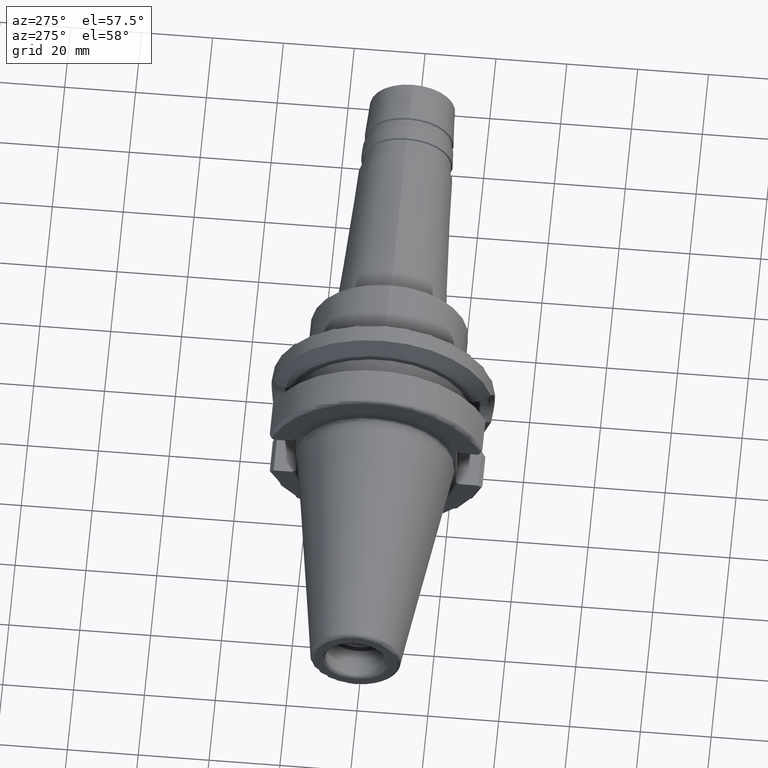
[diagram: clean part render]
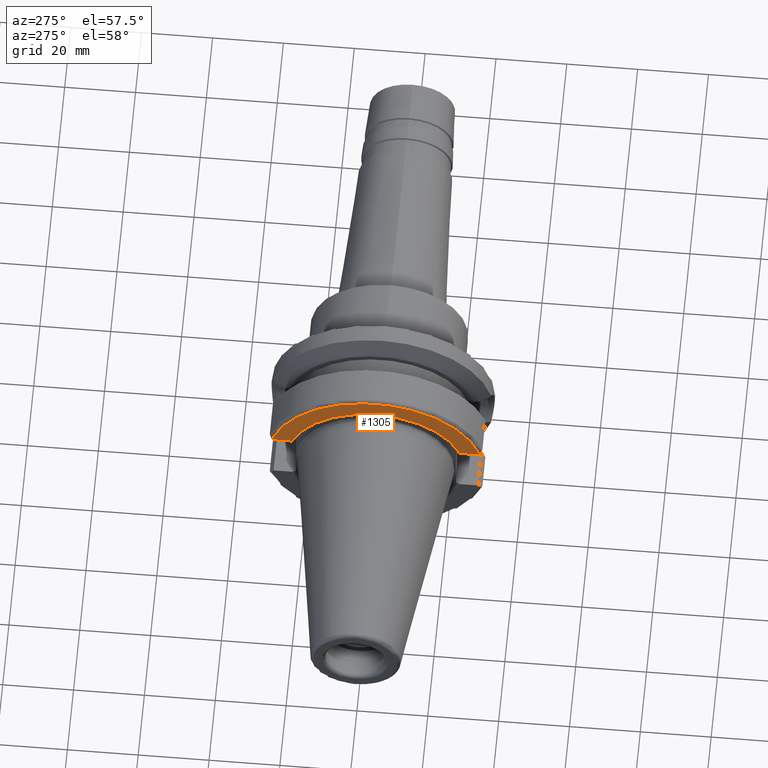
[diagram: same view with one face highlighted and labeled with its STEP entity id]
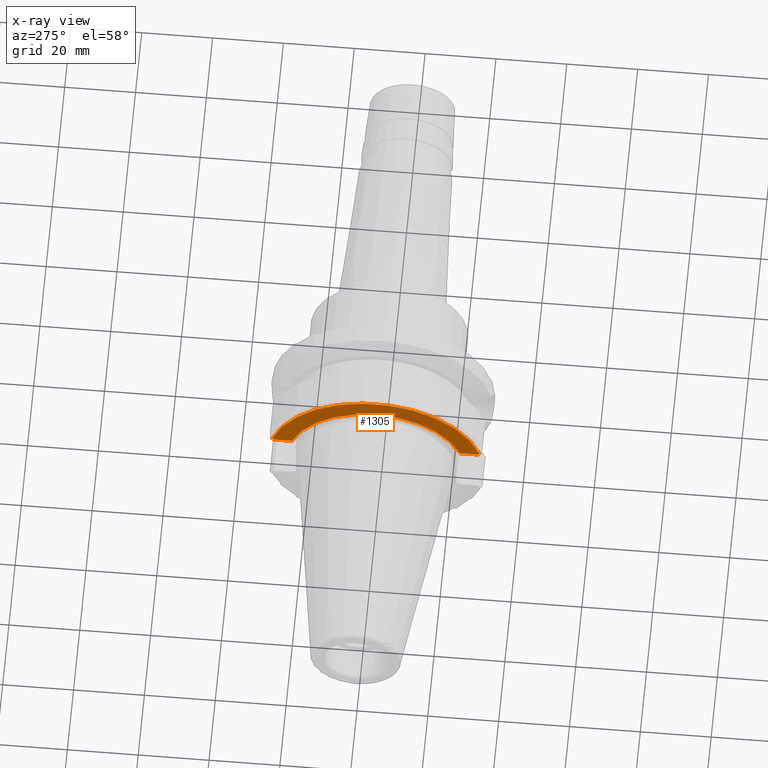
[diagram: x-ray of the same camera — body ghosted, the highlighted face saturated]
A machine part, auxiliary view. The second image highlights one B-rep face of the part: STEP entity #1305.
The next image is the same camera in x-ray: the body ghosted, the highlighted face saturated — about 0% of this face is hidden behind the body in this view.
In plain terms, the highlighted planar face has unit normal (-1, 0, 0).
Its self-contained STEP definition (entity closure, byte-faithful):
#80=PLANE('',#1466);
#122=LINE('',#2310,#193);
#124=LINE('',#2316,#195);
#125=LINE('',#2318,#196);
#126=LINE('',#2321,#197);
#193=VECTOR('',#1764,10.);
#195=VECTOR('',#1770,10.);
#196=VECTOR('',#1771,10.);
#197=VECTOR('',#1774,10.);
#301=FACE_OUTER_BOUND('',#388,.T.);
#388=EDGE_LOOP('',(#1017,#1018,#1019,#1020,#1021,#1022));
#489=CIRCLE('',#1467,30.5);
#490=CIRCLE('',#1468,25.);
#589=VERTEX_POINT('',#2298);
#590=VERTEX_POINT('',#2309);
#591=VERTEX_POINT('',#2313);
#592=VERTEX_POINT('',#2315);
#593=VERTEX_POINT('',#2317);
#594=VERTEX_POINT('',#2319);
#745=EDGE_CURVE('',#589,#590,#122,.T.);
#747=EDGE_CURVE('',#591,#589,#489,.T.);
#748=EDGE_CURVE('',#592,#591,#124,.T.);
#749=EDGE_CURVE('',#592,#593,#125,.T.);
#750=EDGE_CURVE('',#593,#594,#490,.T.);
#751=EDGE_CURVE('',#594,#590,#126,.T.);
#1017=ORIENTED_EDGE('',*,*,#745,.F.);
#1018=ORIENTED_EDGE('',*,*,#747,.F.);
#1019=ORIENTED_EDGE('',*,*,#748,.F.);
#1020=ORIENTED_EDGE('',*,*,#749,.T.);
#1021=ORIENTED_EDGE('',*,*,#750,.T.);
#1022=ORIENTED_EDGE('',*,*,#751,.T.);
#1305=ADVANCED_FACE('',(#301),#80,.T.);
#1466=AXIS2_PLACEMENT_3D('',#2312,#1766,#1767);
#1467=AXIS2_PLACEMENT_3D('',#2314,#1768,#1769);
#1468=AXIS2_PLACEMENT_3D('',#2320,#1772,#1773);
#1764=DIRECTION('',(0.,0.599988902555658,-0.800008322962991));
#1766=DIRECTION('center_axis',(-1.,0.,0.));
#1767=DIRECTION('ref_axis',(0.,0.,1.));
#1768=DIRECTION('center_axis',(1.,0.,0.));
#1769=DIRECTION('ref_axis',(0.,0.,-1.));
#1770=DIRECTION('',(0.,0.599988902555658,0.800008322962991));
#1771=DIRECTION('',(0.,-1.,0.));
#1772=DIRECTION('center_axis',(1.,0.,0.));
#1773=DIRECTION('ref_axis',(0.,0.,-1.));
#1774=DIRECTION('',(0.,-1.,0.));
#2298=CARTESIAN_POINT('',(0.999999999999992,-29.2635810473993,8.59609354778619));
#2309=CARTESIAN_POINT('',(0.999999999999993,-28.8540227227866,8.05));
#2310=CARTESIAN_POINT('',(0.999999999999992,-16.5266988165472,-8.38690688751911));
#2312=CARTESIAN_POINT('Origin',(0.999999999999993,30.5,0.));
#2313=CARTESIAN_POINT('',(0.999999999999992,29.2635810473993,8.59609354778619));
#2314=CARTESIAN_POINT('Origin',(0.999999999999992,0.,0.));
#2315=CARTESIAN_POINT('',(0.999999999999993,28.8540227227866,8.05));
#2316=CARTESIAN_POINT('',(0.999999999999992,27.5062926538405,6.25297464224459));
#2317=CARTESIAN_POINT('',(1.00000000000002,23.6684917136686,8.05));
#2318=CARTESIAN_POINT('',(0.999999999999993,26.55,8.05));
#2319=CARTESIAN_POINT('',(1.00000000000002,-23.6684917136686,8.05));
#2320=CARTESIAN_POINT('Origin',(1.,0.,0.));
#2321=CARTESIAN_POINT('',(0.999999999999993,3.95,8.05));